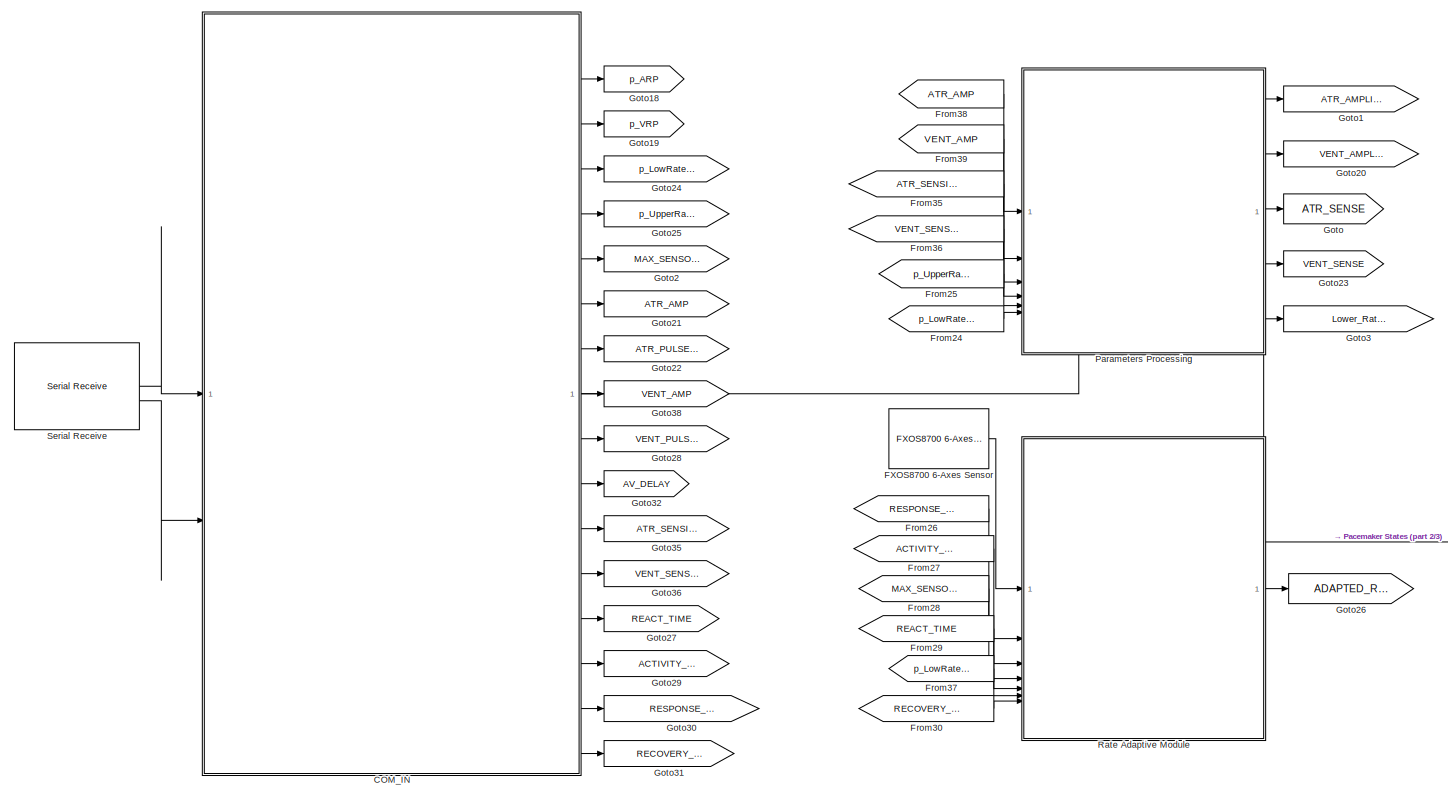
[diagram: root canvas - part 1/3, left side, full height]
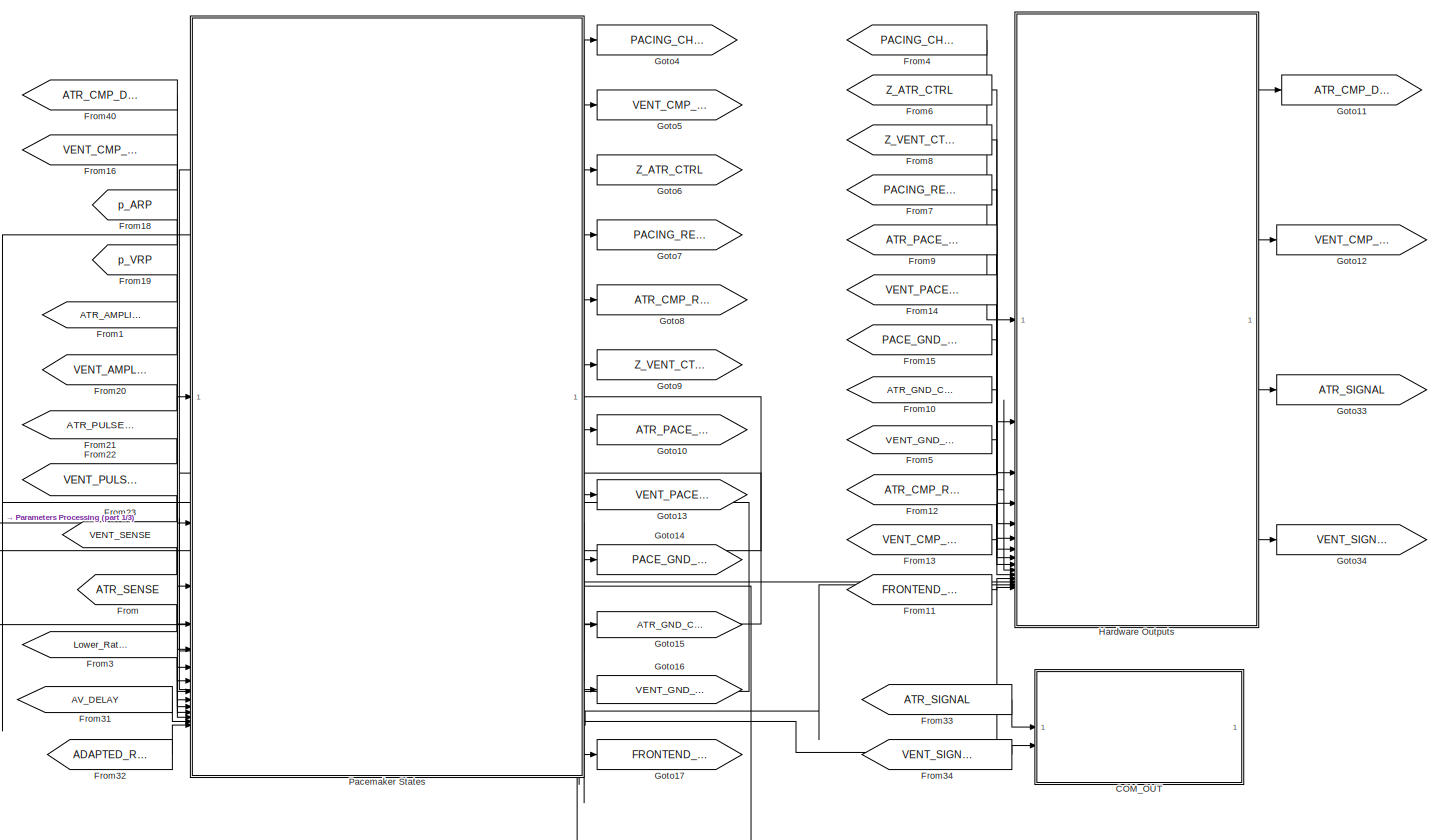
[diagram: root canvas - part 2/3, right side, full height]
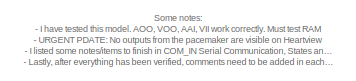
[diagram: root canvas - part 3/3, bottom center region]
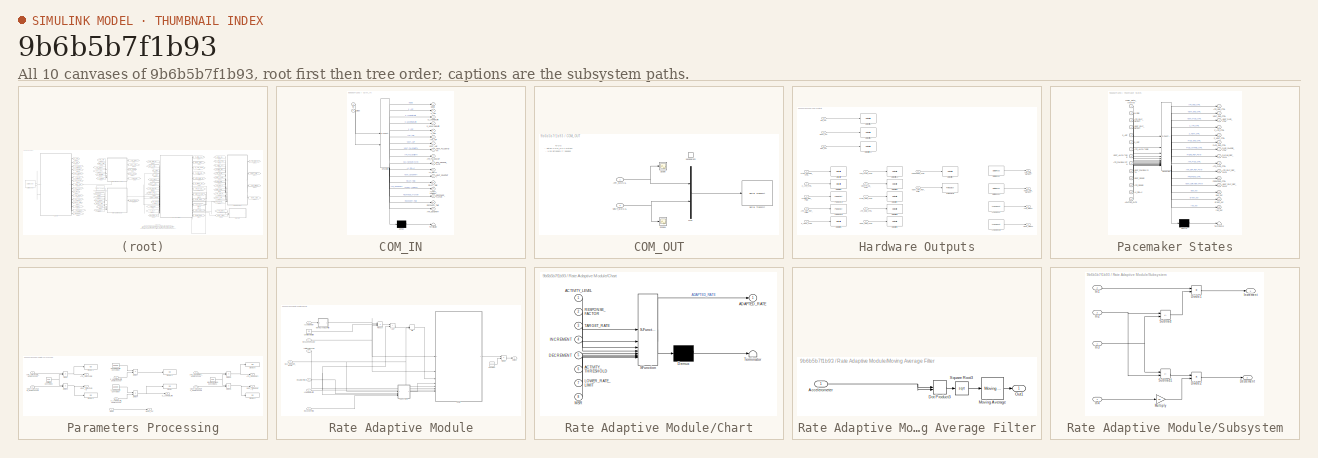
[diagram: thumbnail index - all 10 canvases of the model, root first then tree order]
MODEL slx_9b6b5b7f1b93
KIND model
CONFIG AbsTol = auto
CONFIG EnableMultiTasking = on
CONFIG FixedStep = 1e-3
CONFIG MaxStep = auto
CONFIG MinStep = auto
CONFIG RelTol = 1e-3
CONFIG SampleTimeConstraint = Unconstrained
CONFIG SolverName = FixedStepAuto
CONFIG StartTime = 0.0
CONFIG StopTime = 1
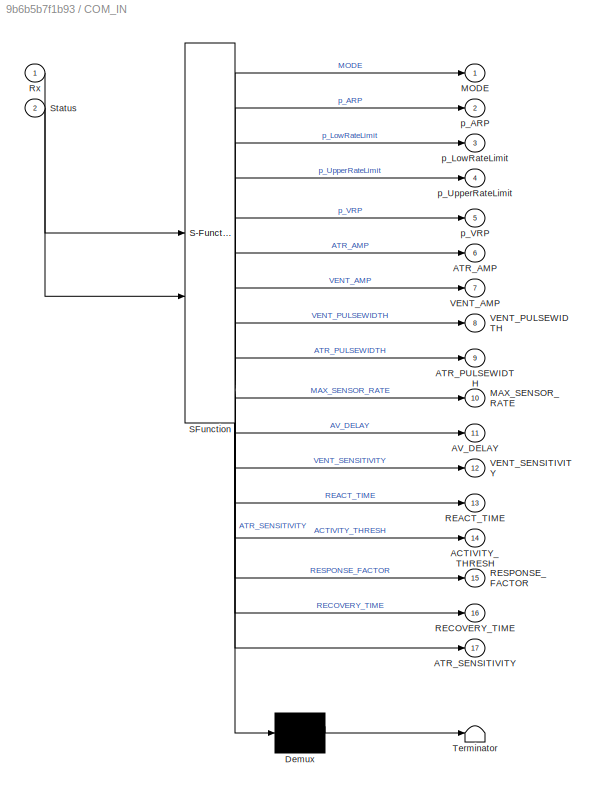
BLOCK [SubSystem] COM_IN
  ErrorFcn = Stateflow.Translate.translate
  PermitHierarchicalResolution = ExplicitOnly
  PortSchema = {"entries":[{"content":{"sides":[{"content":{"connectorIds":["In1","In2"]},"type":"ConnectorPlacement.EquallySpacedRectSide","uuid":"1aa50ecf-3a03-4bd0-8c8d-e8c42c1df160"},{"content":{"connectorIds":["Out1","Out2","Out5","Out3","Out4","Out10","Out6","Out9","Out7","Out8","Out11","Out17","Out12","Out13","Out14","Out15","Out16"],"side":"RIGHT"},"type":"ConnectorPlacement.EquallySpacedRectSide","uuid"...<+366ch>
  SFBlockType = Chart
  TreatAsAtomicUnit = on
BLOCK [Demux] COM_IN/ Demux 
  Outputs = 1
BLOCK [S-Function] COM_IN/ SFunction 
  EnableBusSupport = on
  FunctionName = sf_sfun
  PortCounts = [2 18]
  SFcnIsStateOwnerBlock = off
  SFunctionDeploymentMode = off
  Tag = Stateflow S-Function 1
BLOCK [Terminator] COM_IN/ Terminator 
BLOCK [Outport] COM_IN/ACTIVITY_THRESH
  Port = 14
BLOCK [Outport] COM_IN/ATR_AMP
  Port = 6
BLOCK [Outport] COM_IN/ATR_PULSEWIDTH
  Port = 9
BLOCK [Outport] COM_IN/ATR_SENSITIVITY
  Port = 17
BLOCK [Outport] COM_IN/AV_DELAY
  Port = 11
BLOCK [Outport] COM_IN/MAX_SENSOR_RATE
  Port = 10
BLOCK [Outport] COM_IN/MODE
BLOCK [Outport] COM_IN/REACT_TIME
  Port = 13
BLOCK [Outport] COM_IN/RECOVERY_TIME
  Port = 16
BLOCK [Outport] COM_IN/RESPONSE_FACTOR
  Port = 15
BLOCK [Inport] COM_IN/Rx
BLOCK [Inport] COM_IN/Status
  Port = 2
BLOCK [Outport] COM_IN/VENT_AMP
  Port = 7
BLOCK [Outport] COM_IN/VENT_PULSEWIDTH
  Port = 8
BLOCK [Outport] COM_IN/VENT_SENSITIVITY
  Port = 12
BLOCK [Outport] COM_IN/p_ARP
  Port = 2
BLOCK [Outport] COM_IN/p_LowRateLimit
  Port = 3
BLOCK [Outport] COM_IN/p_UpperRateLimit
  Port = 4
BLOCK [Outport] COM_IN/p_VRP
  Port = 5
BLOCK [SubSystem] COM_OUT
  TreatAsAtomicUnit = on
BLOCK [Inport] COM_OUT/ATR_SIGNAL
  OutDataTypeStr = double
BLOCK [Mux] COM_OUT/Mux
  DisplayOption = bar
  Inputs = 2
BLOCK [Scope] COM_OUT/Scope
  Floating = off
  NumInputPorts = 1
  ScopeSpecificationString = Simulink.scopes.TimeScopeBlockCfg('CurrentConfiguration', extmgr.ConfigurationSet(extmgr.Configuration('Core','General UI',true),extmgr.Configuration('Core','Source UI',true),extmgr.Configuration('Sources','WiredSimulink',true,'DataLoggingVariableName','ScopeData1'),extmgr.Configuration('Visuals','Time Domain',true),extmgr.Configuration('Tools','Plot Navigation',true),extmgr.Configuration('Tools',...<+40ch>
BLOCK [Scope] COM_OUT/Scope1
  Floating = off
  NumInputPorts = 1
  ScopeSpecificationString = Simulink.scopes.TimeScopeBlockCfg('CurrentConfiguration', extmgr.ConfigurationSet(extmgr.Configuration('Core','General UI',true),extmgr.Configuration('Core','Source UI',true),extmgr.Configuration('Sources','WiredSimulink',true),extmgr.Configuration('Visuals','Time Domain',true),extmgr.Configuration('Tools','Plot Navigation',true),extmgr.Configuration('Tools','Measurements',true)),'Version','2022b'...<+1ch>
BLOCK [Reference] COM_OUT/Serial Transmit  REF=frdmk64flib/Serial Transmit
  SourceBlock = frdmk64flib/Serial Transmit
  SourceType = freedomk64f.SCIWrite
BLOCK [Inport] COM_OUT/VENT_SIGNAL
  OutDataTypeStr = double
  Port = 2
BLOCK [TriggerPort] COM_OUT/sendparam
  FunctionName = sendparam
  IsSimulinkFunction = on
  PortDimensions = 1
  StatesWhenEnabling = held
  TriggerType = function-call
  VariantControl = (inherit)
BLOCK [Reference] FXOS8700 6-Axes Sensor  REF=frdmk64flib/FXOS8700 6-Axes Sensor
  SourceBlock = frdmk64flib/FXOS8700 6-Axes Sensor
  SourceType = freedomk64f.fxos8700
BLOCK [From] From
  GotoTag = ATR_SENSE
BLOCK [From] From1
  GotoTag = ATR_AMPLITUDE
BLOCK [From] From10
  GotoTag = ATR_GND_CTRL
BLOCK [From] From11
  GotoTag = FRONTEND_CTRL
BLOCK [From] From12
  GotoTag = ATR_CMP_REF_PWM
BLOCK [From] From13
  GotoTag = VENT_CMP_REF_PWM
BLOCK [From] From14
  GotoTag = VENT_PACE_CTRL
BLOCK [From] From15
  GotoTag = PACE_GND_CTRL
BLOCK [From] From16
  GotoTag = VENT_CMP_DETECT
BLOCK [From] From18
  GotoTag = p_ARP
BLOCK [From] From19
  GotoTag = p_VRP
BLOCK [From] From20
  GotoTag = VENT_AMPLITUDE
BLOCK [From] From21
  GotoTag = ATR_PULSEWIDTH
BLOCK [From] From22
  GotoTag = VENT_PULSEWIDTH
BLOCK [From] From23
  GotoTag = VENT_SENSE
BLOCK [From] From24
  GotoTag = p_LowRateLimit
BLOCK [From] From25
  GotoTag = p_UpperRateLimit
BLOCK [From] From26
  GotoTag = RESPONSE_FACTOR
BLOCK [From] From27
  GotoTag = ACTIVITY_THRESH
BLOCK [From] From28
  GotoTag = MAX_SENSOR_RATE
BLOCK [From] From29
  GotoTag = REACT_TIME
BLOCK [From] From3
  GotoTag = Lower_Rate_Interval
BLOCK [From] From30
  GotoTag = RECOVERY_TIME
BLOCK [From] From31
  GotoTag = AV_DELAY
BLOCK [From] From32
  GotoTag = ADAPTED_RATE
BLOCK [From] From33
  GotoTag = ATR_SIGNAL
BLOCK [From] From34
  GotoTag = VENT_SIGNAL
BLOCK [From] From35
  GotoTag = ATR_SENSITIVITY
BLOCK [From] From36
  GotoTag = VENT_SENSITIVITY
BLOCK [From] From37
  GotoTag = p_LowRateLimit
BLOCK [From] From38
  GotoTag = ATR_AMP
BLOCK [From] From39
  GotoTag = VENT_AMP
BLOCK [From] From4
  GotoTag = PACING_CHARGE_CTRL
BLOCK [From] From40
  GotoTag = ATR_CMP_DETECT
BLOCK [From] From5
  GotoTag = VENT_GND_CTRL
BLOCK [From] From6
  GotoTag = Z_ATR_CTRL
BLOCK [From] From7
  GotoTag = PACING_REF_PWM
BLOCK [From] From8
  GotoTag = Z_VENT_CTRL
BLOCK [From] From9
  GotoTag = ATR_PACE_CTRL
BLOCK [Goto] Goto
  GotoTag = ATR_SENSE
BLOCK [Goto] Goto1
  GotoTag = ATR_AMPLITUDE
BLOCK [Goto] Goto10
  GotoTag = ATR_PACE_CTRL
BLOCK [Goto] Goto11
  GotoTag = ATR_CMP_DETECT
BLOCK [Goto] Goto12
  GotoTag = VENT_CMP_DETECT
BLOCK [Goto] Goto13
  GotoTag = VENT_PACE_CTRL
BLOCK [Goto] Goto14
  GotoTag = PACE_GND_CTRL
BLOCK [Goto] Goto15
  GotoTag = ATR_GND_CTRL
BLOCK [Goto] Goto16
  GotoTag = VENT_GND_CTRL
BLOCK [Goto] Goto17
  GotoTag = FRONTEND_CTRL
BLOCK [Goto] Goto18
  GotoTag = p_ARP
BLOCK [Goto] Goto19
  GotoTag = p_VRP
BLOCK [Goto] Goto2
  GotoTag = MAX_SENSOR_RATE
BLOCK [Goto] Goto20
  GotoTag = VENT_AMPLITUDE
BLOCK [Goto] Goto21
  GotoTag = ATR_AMP
BLOCK [Goto] Goto22
  GotoTag = ATR_PULSEWIDTH
BLOCK [Goto] Goto23
  GotoTag = VENT_SENSE
BLOCK [Goto] Goto24
  GotoTag = p_LowRateLimit
BLOCK [Goto] Goto25
  GotoTag = p_UpperRateLimit
BLOCK [Goto] Goto26
  GotoTag = ADAPTED_RATE
BLOCK [Goto] Goto27
  GotoTag = REACT_TIME
BLOCK [Goto] Goto28
  GotoTag = VENT_PULSEWIDTH
BLOCK [Goto] Goto29
  GotoTag = ACTIVITY_THRESH
BLOCK [Goto] Goto3
  GotoTag = Lower_Rate_Interval
BLOCK [Goto] Goto30
  GotoTag = RESPONSE_FACTOR
BLOCK [Goto] Goto31
  GotoTag = RECOVERY_TIME
BLOCK [Goto] Goto32
  GotoTag = AV_DELAY
BLOCK [Goto] Goto33
  GotoTag = ATR_SIGNAL
BLOCK [Goto] Goto34
  GotoTag = VENT_SIGNAL
BLOCK [Goto] Goto35
  GotoTag = ATR_SENSITIVITY
BLOCK [Goto] Goto36
  GotoTag = VENT_SENSITIVITY
BLOCK [Goto] Goto38
  GotoTag = VENT_AMP
BLOCK [Goto] Goto4
  GotoTag = PACING_CHARGE_CTRL
BLOCK [Goto] Goto5
  GotoTag = VENT_CMP_REF_PWM
BLOCK [Goto] Goto6
  GotoTag = Z_ATR_CTRL
BLOCK [Goto] Goto7
  GotoTag = PACING_REF_PWM
BLOCK [Goto] Goto8
  GotoTag = ATR_CMP_REF_PWM
BLOCK [Goto] Goto9
  GotoTag = Z_VENT_CTRL
BLOCK [SubSystem] Hardware Outputs
BLOCK [Outport] Hardware Outputs/ATR_CMP_DETECT
BLOCK [Inport] Hardware Outputs/ATR_CMP_REF_PWM
  Port = 10
BLOCK [Inport] Hardware Outputs/ATR_GND_CTRL
  Port = 8
BLOCK [Inport] Hardware Outputs/ATR_PACE_CTRL
  Port = 5
BLOCK [Outport] Hardware Outputs/ATR_SIGNAL
  OutDataTypeStr = double
  Port = 3
BLOCK [Reference] Hardware Outputs/Analog Input  REF=frdmk64flib/Analog Input
  SourceBlock = frdmk64flib/Analog Input
  SourceType = freedomk64f.AnalogInput
BLOCK [Reference] Hardware Outputs/Analog Input1  REF=frdmk64flib/Analog Input
  SourceBlock = frdmk64flib/Analog Input
  SourceType = freedomk64f.AnalogInput
BLOCK [Reference] Hardware Outputs/Digital Read  REF=frdmk64flib/Digital Read
  SourceBlock = frdmk64flib/Digital Read
  SourceType = freedomk64f.DigitalRead
BLOCK [Reference] Hardware Outputs/Digital Read1  REF=frdmk64flib/Digital Read
  SourceBlock = frdmk64flib/Digital Read
  SourceType = freedomk64f.DigitalRead
BLOCK [Reference] Hardware Outputs/Digital Write  REF=frdmk64flib/Digital Write
  SourceBlock = frdmk64flib/Digital Write
  SourceType = freedomk64f.DigitalWrite
BLOCK [Reference] Hardware Outputs/Digital Write1  REF=frdmk64flib/Digital Write
  SourceBlock = frdmk64flib/Digital Write
  SourceType = freedomk64f.DigitalWrite
BLOCK [Reference] Hardware Outputs/Digital Write10  REF=frdmk64flib/Digital Write
  SourceBlock = frdmk64flib/Digital Write
  SourceType = freedomk64f.DigitalWrite
BLOCK [Reference] Hardware Outputs/Digital Write11  REF=frdmk64flib/Digital Write
  SourceBlock = frdmk64flib/Digital Write
  SourceType = freedomk64f.DigitalWrite
BLOCK [Reference] Hardware Outputs/Digital Write2  REF=frdmk64flib/Digital Write
  SourceBlock = frdmk64flib/Digital Write
  SourceType = freedomk64f.DigitalWrite
BLOCK [Reference] Hardware Outputs/Digital Write3  REF=frdmk64flib/Digital Write
  SourceBlock = frdmk64flib/Digital Write
  SourceType = freedomk64f.DigitalWrite
BLOCK [Reference] Hardware Outputs/Digital Write4  REF=frdmk64flib/Digital Write
  SourceBlock = frdmk64flib/Digital Write
  SourceType = freedomk64f.DigitalWrite
BLOCK [Reference] Hardware Outputs/Digital Write5  REF=frdmk64flib/Digital Write
  SourceBlock = frdmk64flib/Digital Write
  SourceType = freedomk64f.DigitalWrite
BLOCK [Reference] Hardware Outputs/Digital Write6  REF=frdmk64flib/Digital Write
  SourceBlock = frdmk64flib/Digital Write
  SourceType = freedomk64f.DigitalWrite
BLOCK [Reference] Hardware Outputs/Digital Write7  REF=frdmk64flib/Digital Write
  SourceBlock = frdmk64flib/Digital Write
  SourceType = freedomk64f.DigitalWrite
BLOCK [Reference] Hardware Outputs/Digital Write8  REF=frdmk64flib/Digital Write
  SourceBlock = frdmk64flib/Digital Write
  SourceType = freedomk64f.DigitalWrite
BLOCK [Reference] Hardware Outputs/Digital Write9  REF=frdmk64flib/Digital Write
  SourceBlock = frdmk64flib/Digital Write
  SourceType = freedomk64f.DigitalWrite
BLOCK [Inport] Hardware Outputs/FRONTEND_CTRL
  Port = 12
BLOCK [Inport] Hardware Outputs/PACE_CHARGE_CTRL
BLOCK [Inport] Hardware Outputs/PACE_GND_CTRL
  Port = 7
BLOCK [Inport] Hardware Outputs/PACING_REF_PWM
  Port = 4
BLOCK [Reference] Hardware Outputs/PWM Output1  REF=frdmk64flib/PWM Output
  SourceBlock = frdmk64flib/PWM Output
  SourceType = freedomk64f.PWMOutput
BLOCK [Reference] Hardware Outputs/PWM Output2  REF=frdmk64flib/PWM Output
  SourceBlock = frdmk64flib/PWM Output
  SourceType = freedomk64f.PWMOutput
BLOCK [Reference] Hardware Outputs/PWM Output3  REF=frdmk64flib/PWM Output
  SourceBlock = frdmk64flib/PWM Output
  SourceType = freedomk64f.PWMOutput
BLOCK [Outport] Hardware Outputs/VENT_CMP_DETECT
  Port = 2
BLOCK [Inport] Hardware Outputs/VENT_CMP_REF_PWM
  Port = 11
BLOCK [Inport] Hardware Outputs/VENT_GND_CTRL
  Port = 9
BLOCK [Inport] Hardware Outputs/VENT_PACE_CTRL
  Port = 6
BLOCK [Outport] Hardware Outputs/VENT_SIGNAL
  OutDataTypeStr = double
  Port = 4
BLOCK [Inport] Hardware Outputs/Z_ATR_CTRL
  Port = 2
BLOCK [Inport] Hardware Outputs/Z_VENT_CTRL
  Port = 3
BLOCK [Inport] Hardware Outputs/blue_out
  Port = 15
BLOCK [Inport] Hardware Outputs/green_out
  Port = 14
BLOCK [Inport] Hardware Outputs/red_out
  Port = 13
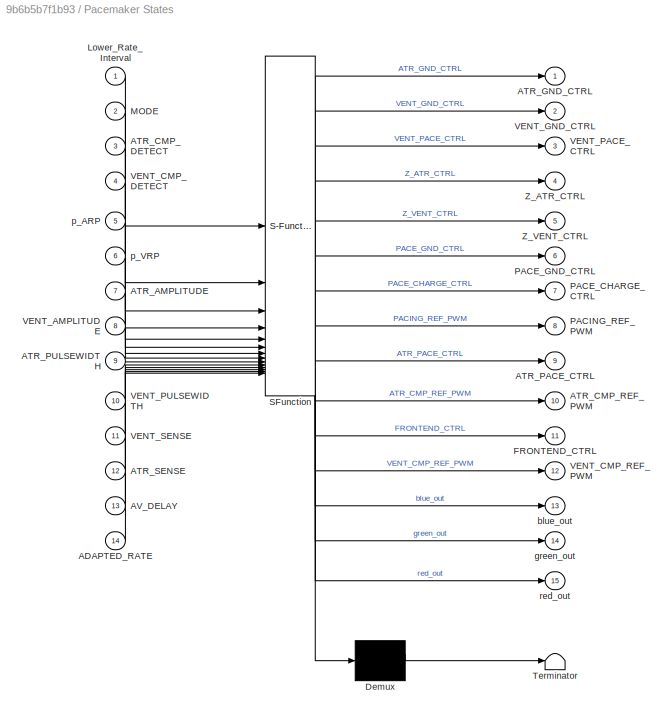
BLOCK [SubSystem] Pacemaker States
  ErrorFcn = Stateflow.Translate.translate
  PermitHierarchicalResolution = ExplicitOnly
  PortSchema = {"entries":[{"content":{"sides":[{"content":{"connectorIds":["In2","In3","In4","In5","In6","In7","In8","In9","In10","In11","In12","In1","In13","In14"]},"type":"ConnectorPlacement.EquallySpacedRectSide","uuid":"15e03f69-5c25-4f3e-b3fb-d71978e552f4"},{"content":{"connectorIds":["Out7","Out12","Out4","Out8","Out10","Out5","Out9","Out3","Out15","Out6","Out14","Out13","Out1","Out2","Out11"],"side":"RIG...<+427ch>
  SFBlockType = Chart
  TreatAsAtomicUnit = on
BLOCK [Demux] Pacemaker States/ Demux 
  Outputs = 1
BLOCK [S-Function] Pacemaker States/ SFunction 
  EnableBusSupport = on
  FunctionName = sf_sfun
  PortCounts = [14 16]
  SFcnIsStateOwnerBlock = off
  SFunctionDeploymentMode = off
  Tag = Stateflow S-Function 3
BLOCK [Terminator] Pacemaker States/ Terminator 
BLOCK [Inport] Pacemaker States/ADAPTED_RATE
  Port = 14
BLOCK [Inport] Pacemaker States/ATR_AMPLITUDE
  Port = 7
BLOCK [Inport] Pacemaker States/ATR_CMP_DETECT
  Port = 3
BLOCK [Outport] Pacemaker States/ATR_CMP_REF_PWM
  Port = 10
BLOCK [Outport] Pacemaker States/ATR_GND_CTRL
BLOCK [Outport] Pacemaker States/ATR_PACE_CTRL
  Port = 9
BLOCK [Inport] Pacemaker States/ATR_PULSEWIDTH
  Port = 9
BLOCK [Inport] Pacemaker States/ATR_SENSE
  Port = 12
BLOCK [Inport] Pacemaker States/AV_DELAY
  Port = 13
BLOCK [Outport] Pacemaker States/FRONTEND_CTRL
  Port = 11
BLOCK [Inport] Pacemaker States/Lower_Rate_Interval
BLOCK [Inport] Pacemaker States/MODE
  Port = 2
BLOCK [Outport] Pacemaker States/PACE_CHARGE_CTRL
  Port = 7
BLOCK [Outport] Pacemaker States/PACE_GND_CTRL
  Port = 6
BLOCK [Outport] Pacemaker States/PACING_REF_PWM
  Port = 8
BLOCK [Inport] Pacemaker States/VENT_AMPLITUDE
  Port = 8
BLOCK [Inport] Pacemaker States/VENT_CMP_DETECT
  Port = 4
BLOCK [Outport] Pacemaker States/VENT_CMP_REF_PWM
  Port = 12
BLOCK [Outport] Pacemaker States/VENT_GND_CTRL
  Port = 2
BLOCK [Outport] Pacemaker States/VENT_PACE_CTRL
  Port = 3
BLOCK [Inport] Pacemaker States/VENT_PULSEWIDTH
  Port = 10
BLOCK [Inport] Pacemaker States/VENT_SENSE
  Port = 11
BLOCK [Outport] Pacemaker States/Z_ATR_CTRL
  Port = 4
BLOCK [Outport] Pacemaker States/Z_VENT_CTRL
  Port = 5
BLOCK [Outport] Pacemaker States/blue_out
  Port = 13
BLOCK [Outport] Pacemaker States/green_out
  Port = 14
BLOCK [Inport] Pacemaker States/p_ARP
  Port = 5
BLOCK [Inport] Pacemaker States/p_VRP
  Port = 6
BLOCK [Outport] Pacemaker States/red_out
  Port = 15
BLOCK [SubSystem] Parameters Processing
  PortSchema = {"entries":[{"content":{"sides":[{"content":{"connectorIds":["In1","In2","In3","In4","In5","In6"]},"type":"ConnectorPlacement.EquallySpacedRectSide","uuid":"651e63ca-28f2-42bd-8706-028901d11c05"},{"content":{"connectorIds":["Out1","Out2","Out3","Out4","Out5"],"side":"RIGHT"},"type":"ConnectorPlacement.EquallySpacedRectSide","uuid":"490f658c-59fe-438c-accc-92ccac1dea65"},{"content":{"connectorIds":...<+310ch>
BLOCK [Outport] Parameters Processing/ATR_AMPLITUDE
  OutDataTypeStr = single
BLOCK [Inport] Parameters Processing/ATR_AMPLITUDE_Unprocessed
  OutDataTypeStr = single
BLOCK [Outport] Parameters Processing/ATR_SENSITIVITY
  OutDataTypeStr = single
  Port = 3
BLOCK [Inport] Parameters Processing/ATR_SENSITIVITY_Unprocessed
  OutDataTypeStr = single
  Port = 3
BLOCK [Constant] Parameters Processing/Amplitude Conversion
  OutDataTypeStr = single
  Value = 0.05
BLOCK [Display] Parameters Processing/Display
  Decimation = 1
BLOCK [Display] Parameters Processing/Display1
  Decimation = 1
BLOCK [Display] Parameters Processing/Display2
  Decimation = 1
BLOCK [Display] Parameters Processing/Display3
  Decimation = 1
BLOCK [Display] Parameters Processing/Display4
  Decimation = 1
BLOCK [Display] Parameters Processing/Display5
  Decimation = 1
BLOCK [Product] Parameters Processing/Divide
  Inputs = */
  OutDataTypeStr = single
BLOCK [Product] Parameters Processing/Divide1
  Inputs = /*
  OutDataTypeStr = single
BLOCK [Product] Parameters Processing/Divide4
  Inputs = */
  OutDataTypeStr = single
  RndMeth = Nearest
BLOCK [Product] Parameters Processing/Divide5
  Inputs = */
  OutDataTypeStr = single
BLOCK [Product] Parameters Processing/Divide6
  Inputs = /*
  OutDataTypeStr = single
BLOCK [Product] Parameters Processing/Divide7
  Inputs = */
  OutDataTypeStr = single
  RndMeth = Nearest
BLOCK [Constant] Parameters Processing/Lower Rate Limit Conversion
  OutDataTypeStr = single
  Value = 60000
BLOCK [Inport] Parameters Processing/MODE
  Port = 7
BLOCK [Constant] Parameters Processing/Maximum Voltage Conversion1
  OutDataTypeStr = single
  Value = 0.05
BLOCK [Outport] Parameters Processing/Mode_out
  Port = 6
BLOCK [Constant] Parameters Processing/Upper Rate Limit Conversion
  OutDataTypeStr = single
  Value = 60000
BLOCK [Outport] Parameters Processing/VENT_AMPLITUDE
  OutDataTypeStr = single
  Port = 2
BLOCK [Inport] Parameters Processing/VENT_AMPLITUDE_Unprocessed
  OutDataTypeStr = single
  Port = 2
BLOCK [Outport] Parameters Processing/VENT_SENSITIVITY
  OutDataTypeStr = single
  Port = 4
BLOCK [Inport] Parameters Processing/VENT_SENSITIVITY_Unprocessed
  OutDataTypeStr = single
  Port = 4
BLOCK [Outport] Parameters Processing/p_LowRateLimit
  OutDataTypeStr = single
  Port = 5
BLOCK [Inport] Parameters Processing/p_LowRateLimit_Unprocessed
  OutDataTypeStr = single
  Port = 6
BLOCK [Inport] Parameters Processing/p_UpperRateLimit_Unprocessed
  OutDataTypeStr = single
  Port = 5
BLOCK [SubSystem] Rate Adaptive Module
BLOCK [Inport] Rate Adaptive Module/Accelerometer
BLOCK [Inport] Rate Adaptive Module/Activity Threshold
  Port = 3
BLOCK [Sum] Rate Adaptive Module/Add
  IconShape = rectangular
BLOCK [SubSystem] Rate Adaptive Module/Chart
  ErrorFcn = Stateflow.Translate.translate
  PermitHierarchicalResolution = ExplicitOnly
  PortSchema = {"entries":[{"content":{"sides":[{"content":{"connectorIds":["In1","In3","In2","In6","In8","In7","In4","In5"]},"type":"ConnectorPlacement.EquallySpacedRectSide","uuid":"efebee7e-2c09-4b25-ba04-904f72c011ed"},{"content":{"connectorIds":["Out1"],"side":"RIGHT"},"type":"ConnectorPlacement.EquallySpacedRectSide","uuid":"6322cc63-1b7a-423a-b49b-7b27e71e0c32"},{"content":{"connectorIds":[],"side":"TOP"}...<+284ch>
  SFBlockType = Chart
  TreatAsAtomicUnit = on
BLOCK [Demux] Rate Adaptive Module/Chart/ Demux 
  Outputs = 1
BLOCK [S-Function] Rate Adaptive Module/Chart/ SFunction 
  EnableBusSupport = on
  FunctionName = sf_sfun
  PortCounts = [8 2]
  SFcnIsStateOwnerBlock = off
  SFunctionDeploymentMode = off
  Tag = Stateflow S-Function 2
BLOCK [Terminator] Rate Adaptive Module/Chart/ Terminator 
BLOCK [Inport] Rate Adaptive Module/Chart/ACTIVITY_LEVEL
BLOCK [Inport] Rate Adaptive Module/Chart/ACTIVITY_THRESHOLD
  Port = 6
BLOCK [Outport] Rate Adaptive Module/Chart/ADAPTED_RATE
BLOCK [Inport] Rate Adaptive Module/Chart/DECREMENT
  Port = 5
BLOCK [Inport] Rate Adaptive Module/Chart/INCREMENT
  Port = 4
BLOCK [Inport] Rate Adaptive Module/Chart/LOWER_RATE_LIMIT
  Port = 7
BLOCK [Inport] Rate Adaptive Module/Chart/MSR
  Port = 8
BLOCK [Inport] Rate Adaptive Module/Chart/RESPONSE_FACTOR
  Port = 2
BLOCK [Inport] Rate Adaptive Module/Chart/TARGET_RATE
  Port = 3
BLOCK [Constant] Rate Adaptive Module/Coefficient Multiple
  Value = 3.5
BLOCK [Constant] Rate Adaptive Module/Constant
  Value = 30000
BLOCK [Product] Rate Adaptive Module/Divide
  Inputs = /*
BLOCK [Inport] Rate Adaptive Module/Lower Rate Limit
  Port = 6
BLOCK [Inport] Rate Adaptive Module/MAX_SENSOR_RATE
  Port = 4
BLOCK [MinMax] Rate Adaptive Module/Min
  Inputs = 2
BLOCK [SubSystem] Rate Adaptive Module/Moving Average Filter
BLOCK [Inport] Rate Adaptive Module/Moving Average Filter/Accelerometer
BLOCK [DotProduct] Rate Adaptive Module/Moving Average Filter/Dot Product3
  OutDataTypeStr = Inherit: Inherit via internal rule
BLOCK [Reference] Rate Adaptive Module/Moving Average Filter/Moving Average  REF=dspstat3/Moving
Average
  SourceBlock = dspstat3/Moving\nAverage
  SourceType = dsp.simulink.MovingAverage
BLOCK [Outport] Rate Adaptive Module/Moving Average Filter/Out1
BLOCK [Sqrt] Rate Adaptive Module/Moving Average Filter/Square Root3
BLOCK [Outport] Rate Adaptive Module/Output
BLOCK [Product] Rate Adaptive Module/Product
  Inputs = 3
BLOCK [Inport] Rate Adaptive Module/Reaction Time
  Port = 5
BLOCK [Inport] Rate Adaptive Module/Recovery Time
  Port = 7
BLOCK [Inport] Rate Adaptive Module/Response Factor
  Port = 2
BLOCK [SubSystem] Rate Adaptive Module/Subsystem
BLOCK [Outport] Rate Adaptive Module/Subsystem/Decrement
  OutDataTypeStr = single
  Port = 2
BLOCK [Product] Rate Adaptive Module/Subsystem/Divide1
  Inputs = /*
  RndMeth = Ceiling
BLOCK [Product] Rate Adaptive Module/Subsystem/Divide2
  Inputs = */
  RndMeth = Ceiling
  SaturateOnIntegerOverflow = on
BLOCK [Inport] Rate Adaptive Module/Subsystem/In1
  OutDataTypeStr = single
  Port = 2
BLOCK [Inport] Rate Adaptive Module/Subsystem/In2
  OutDataTypeStr = single
  Port = 3
BLOCK [Inport] Rate Adaptive Module/Subsystem/In3
  OutDataTypeStr = single
BLOCK [Inport] Rate Adaptive Module/Subsystem/In4
  OutDataTypeStr = single
  Port = 4
BLOCK [Outport] Rate Adaptive Module/Subsystem/Increment
  OutDataTypeStr = single
BLOCK [Gain] Rate Adaptive Module/Subsystem/Multiply
  Gain = 60
BLOCK [Sum] Rate Adaptive Module/Subsystem/Subtract
  IconShape = rectangular
  Inputs = -+
BLOCK [Sum] Rate Adaptive Module/Subsystem/Subtract1
  IconShape = rectangular
  Inputs = +-
BLOCK [Reference] Serial Receive  REF=frdmk64flib/Serial Receive
  SourceBlock = frdmk64flib/Serial Receive
  SourceType = freedomk64f.SCIRead
ANNOTATION (root): Some notes: - I have tested this model. AOO, VOO, AAI, VII work correctly. Must test RAM - URGENT PDATE: No outputs from the pacemaker are visible on Heartview - I listed some notes/items to finish in COM_IN Serial Communication, States and COM_OUT - Lastly, after everything has been verified, comments need to be added in each section and hardware hiding techniques need to be applied
ANNOTATION COM_OUT: To-Do: - Setup COM_OUT system - Use Bytepack if needed
LINE COM_IN:1 -> Parameters Processing:7
LINE COM_IN:10 -> Goto2:1
LINE COM_IN:11 -> Goto32:1
LINE COM_IN:12 -> Goto36:1
LINE COM_IN:13 -> Goto27:1
LINE COM_IN:14 -> Goto29:1
LINE COM_IN:15 -> Goto30:1
LINE COM_IN:16 -> Goto31:1
LINE COM_IN:17 -> Goto35:1
LINE COM_IN:2 -> Goto18:1
LINE COM_IN:3 -> Goto24:1
LINE COM_IN:4 -> Goto25:1
LINE COM_IN:5 -> Goto19:1
LINE COM_IN:6 -> Goto21:1
LINE COM_IN:7 -> Goto38:1
LINE COM_IN:8 -> Goto28:1
LINE COM_IN:9 -> Goto22:1
NET COM_OUT/ATR_SIGNAL:1 -> COM_OUT/Mux:1, COM_OUT/Scope:1
LINE COM_OUT/Mux:1 -> COM_OUT/Serial Transmit:1
NET COM_OUT/VENT_SIGNAL:1 -> COM_OUT/Mux:2, COM_OUT/Scope1:1
LINE FXOS8700 6-Axes Sensor:1 -> Rate Adaptive Module:1
LINE From10:1 -> Hardware Outputs:8
LINE From11:1 -> Hardware Outputs:12
LINE From12:1 -> Hardware Outputs:10
LINE From13:1 -> Hardware Outputs:11
LINE From14:1 -> Hardware Outputs:6
LINE From15:1 -> Hardware Outputs:7
LINE From16:1 -> Pacemaker States:4
LINE From18:1 -> Pacemaker States:5
LINE From19:1 -> Pacemaker States:6
LINE From1:1 -> Pacemaker States:7
LINE From20:1 -> Pacemaker States:8
LINE From21:1 -> Pacemaker States:9
LINE From22:1 -> Pacemaker States:10
LINE From23:1 -> Pacemaker States:11
LINE From24:1 -> Parameters Processing:6
LINE From25:1 -> Parameters Processing:5
LINE From26:1 -> Rate Adaptive Module:2
LINE From27:1 -> Rate Adaptive Module:3
LINE From28:1 -> Rate Adaptive Module:4
LINE From29:1 -> Rate Adaptive Module:5
LINE From30:1 -> Rate Adaptive Module:7
LINE From31:1 -> Pacemaker States:13
LINE From32:1 -> Pacemaker States:14
LINE From33:1 -> COM_OUT:1
LINE From34:1 -> COM_OUT:2
LINE From35:1 -> Parameters Processing:3
LINE From36:1 -> Parameters Processing:4
LINE From37:1 -> Rate Adaptive Module:6
LINE From38:1 -> Parameters Processing:1
LINE From39:1 -> Parameters Processing:2
LINE From3:1 -> Pacemaker States:1
LINE From40:1 -> Pacemaker States:3
LINE From4:1 -> Hardware Outputs:1
LINE From5:1 -> Hardware Outputs:9
LINE From6:1 -> Hardware Outputs:2
LINE From7:1 -> Hardware Outputs:4
LINE From8:1 -> Hardware Outputs:3
LINE From9:1 -> Hardware Outputs:5
LINE From:1 -> Pacemaker States:12
LINE Hardware Outputs/ATR_CMP_REF_PWM:1 -> Hardware Outputs/PWM Output2:1
LINE Hardware Outputs/ATR_GND_CTRL:1 -> Hardware Outputs/Digital Write8:1
LINE Hardware Outputs/ATR_PACE_CTRL:1 -> Hardware Outputs/Digital Write10:1
LINE Hardware Outputs/Analog Input1:1 -> Hardware Outputs/VENT_SIGNAL:1
LINE Hardware Outputs/Analog Input:1 -> Hardware Outputs/ATR_SIGNAL:1
LINE Hardware Outputs/Digital Read1:1 -> Hardware Outputs/VENT_CMP_DETECT:1
LINE Hardware Outputs/Digital Read:1 -> Hardware Outputs/ATR_CMP_DETECT:1
LINE Hardware Outputs/FRONTEND_CTRL:1 -> Hardware Outputs/Digital Write4:1
LINE Hardware Outputs/PACE_CHARGE_CTRL:1 -> Hardware Outputs/Digital Write:1
LINE Hardware Outputs/PACE_GND_CTRL:1 -> Hardware Outputs/Digital Write7:1
LINE Hardware Outputs/PACING_REF_PWM:1 -> Hardware Outputs/PWM Output1:1
LINE Hardware Outputs/VENT_CMP_REF_PWM:1 -> Hardware Outputs/PWM Output3:1
LINE Hardware Outputs/VENT_GND_CTRL:1 -> Hardware Outputs/Digital Write9:1
LINE Hardware Outputs/VENT_PACE_CTRL:1 -> Hardware Outputs/Digital Write6:1
LINE Hardware Outputs/Z_ATR_CTRL:1 -> Hardware Outputs/Digital Write2:1
LINE Hardware Outputs/Z_VENT_CTRL:1 -> Hardware Outputs/Digital Write5:1
LINE Hardware Outputs/blue_out:1 -> Hardware Outputs/Digital Write11:1
LINE Hardware Outputs/green_out:1 -> Hardware Outputs/Digital Write3:1
LINE Hardware Outputs/red_out:1 -> Hardware Outputs/Digital Write1:1
LINE Hardware Outputs:1 -> Goto11:1
LINE Hardware Outputs:2 -> Goto12:1
LINE Hardware Outputs:3 -> Goto33:1
LINE Hardware Outputs:4 -> Goto34:1
LINE Pacemaker States:1 -> Goto15:1
LINE Pacemaker States:10 -> Goto8:1
LINE Pacemaker States:11 -> Goto17:1
LINE Pacemaker States:12 -> Goto5:1
LINE Pacemaker States:13 -> Hardware Outputs:15
LINE Pacemaker States:14 -> Hardware Outputs:14
LINE Pacemaker States:15 -> Hardware Outputs:13
LINE Pacemaker States:2 -> Goto16:1
LINE Pacemaker States:3 -> Goto13:1
LINE Pacemaker States:4 -> Goto6:1
LINE Pacemaker States:5 -> Goto9:1
LINE Pacemaker States:6 -> Goto14:1
LINE Pacemaker States:7 -> Goto4:1
LINE Pacemaker States:8 -> Goto7:1
LINE Pacemaker States:9 -> Goto10:1
LINE Parameters Processing/ATR_AMPLITUDE_Unprocessed:1 -> Parameters Processing/Divide:1
LINE Parameters Processing/ATR_SENSITIVITY_Unprocessed:1 -> Parameters Processing/Divide5:1
NET Parameters Processing/Amplitude Conversion:1 -> Parameters Processing/Divide1:1, Parameters Processing/Divide:2
NET Parameters Processing/Divide1:1 -> Parameters Processing/Display3:1, Parameters Processing/VENT_AMPLITUDE:1
NET Parameters Processing/Divide4:1 -> Parameters Processing/Display:1, Parameters Processing/p_LowRateLimit:1
NET Parameters Processing/Divide5:1 -> Parameters Processing/ATR_SENSITIVITY:1, Parameters Processing/Display5:1
NET Parameters Processing/Divide6:1 -> Parameters Processing/Display4:1, Parameters Processing/VENT_SENSITIVITY:1
LINE Parameters Processing/Divide7:1 -> Parameters Processing/Display2:1
NET Parameters Processing/Divide:1 -> Parameters Processing/ATR_AMPLITUDE:1, Parameters Processing/Display1:1
LINE Parameters Processing/Lower Rate Limit Conversion:1 -> Parameters Processing/Divide4:1
LINE Parameters Processing/MODE:1 -> Parameters Processing/Mode_out:1
NET Parameters Processing/Maximum Voltage Conversion1:1 -> Parameters Processing/Divide5:2, Parameters Processing/Divide6:1
LINE Parameters Processing/Upper Rate Limit Conversion:1 -> Parameters Processing/Divide7:1
LINE Parameters Processing/VENT_AMPLITUDE_Unprocessed:1 -> Parameters Processing/Divide1:2
LINE Parameters Processing/VENT_SENSITIVITY_Unprocessed:1 -> Parameters Processing/Divide6:2
LINE Parameters Processing/p_LowRateLimit_Unprocessed:1 -> Parameters Processing/Divide4:2
LINE Parameters Processing/p_UpperRateLimit_Unprocessed:1 -> Parameters Processing/Divide7:2
LINE Parameters Processing:1 -> Goto1:1
LINE Parameters Processing:2 -> Goto20:1
LINE Parameters Processing:3 -> Goto:1
LINE Parameters Processing:4 -> Goto23:1
LINE Parameters Processing:5 -> Goto3:1
LINE Parameters Processing:6 -> Pacemaker States:2
LINE Rate Adaptive Module/Accelerometer:1 -> Rate Adaptive Module/Moving Average Filter:1
LINE Rate Adaptive Module/Activity Threshold:1 -> Rate Adaptive Module/Chart:6
LINE Rate Adaptive Module/Add:1 -> Rate Adaptive Module/Min:1
LINE Rate Adaptive Module/Chart:1 -> Rate Adaptive Module/Divide:1
LINE Rate Adaptive Module/Coefficient Multiple:1 -> Rate Adaptive Module/Product:2
LINE Rate Adaptive Module/Constant:1 -> Rate Adaptive Module/Divide:2
LINE Rate Adaptive Module/Divide:1 -> Rate Adaptive Module/Output:1
NET Rate Adaptive Module/Lower Rate Limit:1 -> Rate Adaptive Module/Add:2, Rate Adaptive Module/Chart:7, Rate Adaptive Module/Subsystem:3
NET Rate Adaptive Module/MAX_SENSOR_RATE:1 -> Rate Adaptive Module/Chart:8, Rate Adaptive Module/Min:2, Rate Adaptive Module/Subsystem:1
LINE Rate Adaptive Module/Min:1 -> Rate Adaptive Module/Chart:3
NET Rate Adaptive Module/Moving Average Filter/Accelerometer:1 -> Rate Adaptive Module/Moving Average Filter/Dot Product3:1, Rate Adaptive Module/Moving Average Filter/Dot Product3:2
LINE Rate Adaptive Module/Moving Average Filter/Dot Product3:1 -> Rate Adaptive Module/Moving Average Filter/Square Root3:1
LINE Rate Adaptive Module/Moving Average Filter/Moving Average:1 -> Rate Adaptive Module/Moving Average Filter/Out1:1
LINE Rate Adaptive Module/Moving Average Filter/Square Root3:1 -> Rate Adaptive Module/Moving Average Filter/Moving Average:1
NET Rate Adaptive Module/Moving Average Filter:1 -> Rate Adaptive Module/Chart:1, Rate Adaptive Module/Product:1
LINE Rate Adaptive Module/Product:1 -> Rate Adaptive Module/Add:1
LINE Rate Adaptive Module/Reaction Time:1 -> Rate Adaptive Module/Subsystem:2
LINE Rate Adaptive Module/Recovery Time:1 -> Rate Adaptive Module/Subsystem:4
NET Rate Adaptive Module/Response Factor:1 -> Rate Adaptive Module/Chart:2, Rate Adaptive Module/Product:3
LINE Rate Adaptive Module/Subsystem/Divide1:1 -> Rate Adaptive Module/Subsystem/Increment:1
LINE Rate Adaptive Module/Subsystem/Divide2:1 -> Rate Adaptive Module/Subsystem/Decrement:1
LINE Rate Adaptive Module/Subsystem/In1:1 -> Rate Adaptive Module/Subsystem/Divide1:1
NET Rate Adaptive Module/Subsystem/In2:1 -> Rate Adaptive Module/Subsystem/Subtract1:2, Rate Adaptive Module/Subsystem/Subtract:1
NET Rate Adaptive Module/Subsystem/In3:1 -> Rate Adaptive Module/Subsystem/Subtract1:1, Rate Adaptive Module/Subsystem/Subtract:2
LINE Rate Adaptive Module/Subsystem/In4:1 -> Rate Adaptive Module/Subsystem/Multiply:1
LINE Rate Adaptive Module/Subsystem/Multiply:1 -> Rate Adaptive Module/Subsystem/Divide2:2
LINE Rate Adaptive Module/Subsystem/Subtract1:1 -> Rate Adaptive Module/Subsystem/Divide2:1
LINE Rate Adaptive Module/Subsystem/Subtract:1 -> Rate Adaptive Module/Subsystem/Divide1:2
LINE Rate Adaptive Module/Subsystem:1 -> Rate Adaptive Module/Chart:4
LINE Rate Adaptive Module/Subsystem:2 -> Rate Adaptive Module/Chart:5
LINE Rate Adaptive Module:1 -> Goto26:1
LINE Serial Receive:1 -> COM_IN:1
LINE Serial Receive:2 -> COM_IN:2
note: NET lines group one-source signal fan-out (src -> all destinations, sorted); 1:1 wires keep LINE
CHART COM_IN states=5 transitions=9
  STATE_LABEL 'SET_PARAM\n% Uses serial input to assign values to the parameters\nentry:\nMODE = Rx(1);\np_ARP = typecast(Rx(2:5), "single");\np_VRP = typecast(Rx(6:9), "single");\np_LowRateLimit = typecast(Rx(10:13), "single");\np_UpperRateLimit = typecast(Rx(14:17), "single");\nMAX_SENSOR_RATE = typecast(Rx(18:21), "single");\nATR_AMP = typecast(Rx(22:25), "single");\nATR_PULSEWIDTH = typecast(Rx(26:29), "single");\nVENT...<+416ch>'
  STATE_LABEL '<!DOCTYPE HTML PUBLIC "-//W3C//DTD HTML 4.0//EN" "http://www.w3.org/TR/REC-html40/strict.dtd">\n<html><head><meta name="qrichtext" content="1" /><style type="text/css">\np, li { white-space: pre-wrap; }\n</style></head><body align="left" style=" font-family:\'Helvetica\'; font-size:12px; font-weight:400; font-style:normal;">\n<p align="left" style=" margin-top:0px; margin-bottom:0px; margin-left:0px; ma...<+720ch>'
  STATE_LABEL 'INITIAL\n% Set the initial values of parameters\nentry:\nMODE = 5;\np_ARP = 250;\np_VRP = 320;\np_LowRateLimit = 60;\np_UpperRateLimit = 120;\nMAX_SENSOR_RATE = 120;\nATR_AMP = 3.5;\nATR_PULSEWIDTH = 1;\nVENT_AMP = 3.5;\nVENT_PULSEWIDTH = 1;\nAV_DELAY = 150;\nATR_SENSITIVITY = 4;\nVENT_SENSITIVITY = 4;\nREACT_TIME = 30;\nACTIVITY_THRESH = 1.1;\nRESPONSE_FACTOR = 8;\nRECOVERY_TIME = 5;'
  STATE_LABEL 'STANDBY\n% Wait for COM'
  STATE_LABEL 'ECHO_PARAM\nentry:\n% Sends back the current value of the parameters\nsendparam();\n'
CHART Rate Adaptive Module/Chart states=4 transitions=10
  STATE_LABEL 'RateSelect\n\nentry:\nADAPTED_RATE = LOWER_RATE_LIMIT\n'
  STATE_LABEL 'Increment\n\nentry:\nADAPTED_RATE = ADAPTED_RATE + INCREMENT'
  STATE_LABEL 'TargetRateAchieved\n\n'
  STATE_LABEL 'Decrement\n\nentry:\nADAPTED_RATE = ADAPTED_RATE - DECREMENT'
CHART Pacemaker States states=30 transitions=49
  STATE_LABEL 'AOO\n'
  STATE_LABEL 'Charging\n\nentry:\n%\n% Charging capacitor C22\nATR_PACE_CTRL = LOW\nVENT_PACE_CTRL = LOW\nPACING_REF_PWM = ATR_AMPLITUDE\nPACE_CHARGE_CTRL = HIGH\n%\n% Release of capacitor C21 into ground\nPACE_GND_CTRL = HIGH\nVENT_PACE_CTRL = LOW\nZ_ATR_CTRL = LOW\nZ_VENT_CTRL = LOW\nATR_PACE_CTRL = LOW\nATR_GND_CTRL = HIGH\nVENT_GND_CTRL = LOW\nred_out = 1;\ngreen_out = 0;\nblue_out = 0;'
  STATE_LABEL 'Discharging\n\nentry:\n%\n% Charge release of capacitor C22 into C21\nPACE_CHARGE_CTRL = LOW\nPACE_GND_CTRL = HIGH\nVENT_PACE_CTRL = LOW\nVENT_GND_CTRL = LOW\nZ_VENT_CTRL = LOW\nZ_ATR_CTRL = LOW\nATR_GND_CTRL = LOW\nATR_PACE_CTRL = HIGH'  <repeated x4 — deduplicated; at blocks: Pacemaker States>
  STATE_LABEL 'after(delayINTERVAL, msec)'
  STATE_LABEL 'after(delayATR_PULSEWIDTH, msec)'
  STATE_LABEL 'Charging\n\nentry:\n%\n% Charging capacitor C22\nATR_PACE_CTRL = LOW\nVENT_PACE_CTRL = LOW\nPACING_REF_PWM = ATR_AMPLITUDE\nPACE_CHARGE_CTRL = HIGH\n%\n% Release of capacitor C21 into ground\nPACE_GND_CTRL = HIGH\nVENT_PACE_CTRL = LOW\nZ_ATR_CTRL = LOW\nZ_VENT_CTRL = LOW\nATR_PACE_CTRL = LOW\nATR_GND_CTRL = HIGH\nVENT_GND_CTRL = LOW\nred_out = 1;\ngreen_out = 0;\nblue_out = 0;'
  STATE_LABEL '<!DOCTYPE HTML PUBLIC "-//W3C//DTD HTML 4.0//EN" "http://www.w3.org/TR/REC-html40/strict.dtd">\n<html><head><meta name="qrichtext" content="1" /><style type="text/css">\np, li { white-space: pre-wrap; }\n</style></head><body align="center" style=" font-family:\'Helvetica\'; font-size:12px; font-weight:400; font-style:normal;">\n<p align="left" style=" margin-top:0px; margin-bottom:0px; margin-left:0px; ...<+1237ch>'
  STATE_LABEL 'VOO\n'
  STATE_LABEL 'Charging\n\nentry:\n%\n% Charging capacitor C22\nATR_PACE_CTRL = LOW\nVENT_PACE_CTRL = LOW\nPACING_REF_PWM = VENT_AMPLITUDE\nPACE_CHARGE_CTRL = HIGH\n%\n% Charge release of capacitor C21 into ground\nPACE_GND_CTRL = HIGH\nVENT_PACE_CTRL = LOW\nZ_ATR_CTRL = LOW\nZ_VENT_CTRL = LOW\nATR_PACE_CTRL = LOW\nATR_GND_CTRL = LOW\nVENT_GND_CTRL = HIGH\nred_out = 0;\ngreen_out = 0;\nblue_out = 1;'
  STATE_LABEL 'Discharging\n\nentry:\n%\n% Charge release of capacitor C22 into C21\nPACE_CHARGE_CTRL = LOW\nPACE_GND_CTRL = HIGH\nATR_PACE_CTRL = LOW\nATR_GND_CTRL = LOW\nZ_VENT_CTRL = LOW\nZ_ATR_CTRL = LOW\nVENT_GND_CTRL = LOW\nVENT_PACE_CTRL = HIGH'  <repeated x4 — deduplicated; at blocks: Pacemaker States>
  STATE_LABEL 'after(delayINTERVAL, msec)'
  STATE_LABEL 'after(delayVENT_PULSEWIDTH, msec)'
  STATE_LABEL 'Charging\n\nentry:\n%\n% Charging capacitor C22\nATR_PACE_CTRL = LOW\nVENT_PACE_CTRL = LOW\nPACING_REF_PWM = VENT_AMPLITUDE\nPACE_CHARGE_CTRL = HIGH\n%\n% Charge release of capacitor C21 into ground\nPACE_GND_CTRL = HIGH\nVENT_PACE_CTRL = LOW\nZ_ATR_CTRL = LOW\nZ_VENT_CTRL = LOW\nATR_PACE_CTRL = LOW\nATR_GND_CTRL = LOW\nVENT_GND_CTRL = HIGH\nred_out = 0;\ngreen_out = 0;\nblue_out = 1;'
  STATE_LABEL 'AAI\n'
  STATE_LABEL 'Transition\n% Check for intrinsic pulse\n'
  STATE_LABEL 'Charging\n\nentry:\n%\n% Turn sensing on\nFRONTEND_CTRL = HIGH\nATR_CMP_REF_PWM = ATR_SENSE\n%\n% Charging capacitor C22\nATR_PACE_CTRL = LOW\nVENT_PACE_CTRL = LOW\nPACING_REF_PWM = ATR_AMPLITUDE\nPACE_CHARGE_CTRL = HIGH\n%\n% Charge release of capacitor C21 into ground\nPACE_GND_CTRL = HIGH\nVENT_PACE_CTRL = LOW\nZ_ATR_CTRL = LOW\nZ_VENT_CTRL = LOW\nATR_PACE_CTRL = LOW\nATR_GND_CTRL = HIGH\nVENT_GND_CTRL = LOW\n'
  STATE_LABEL 'after(delayINTERVAL-delayARP, msec)'
  STATE_LABEL '[ATR_CMP_DETECT == HIGH]'
  STATE_LABEL 'after(delayARP, msec)'
  STATE_LABEL 'after(delayATR_PULSEWIDTH, msec)'
  STATE_LABEL 'Transition\n% Check for intrinsic pulse\n'
  STATE_LABEL 'Charging\n\nentry:\n%\n% Turn sensing on\nFRONTEND_CTRL = HIGH\nATR_CMP_REF_PWM = ATR_SENSE\n%\n% Charging capacitor C22\nATR_PACE_CTRL = LOW\nVENT_PACE_CTRL = LOW\nPACING_REF_PWM = ATR_AMPLITUDE\nPACE_CHARGE_CTRL = HIGH\n%\n% Charge release of capacitor C21 into ground\nPACE_GND_CTRL = HIGH\nVENT_PACE_CTRL = LOW\nZ_ATR_CTRL = LOW\nZ_VENT_CTRL = LOW\nATR_PACE_CTRL = LOW\nATR_GND_CTRL = HIGH\nVENT_GND_CTRL = LOW\n'
  STATE_LABEL 'VVI\n'
  STATE_LABEL 'Transition\n% Check for intrinsic pulse'
  STATE_LABEL 'Charging\n\nentry:\n%\n% Turn sensing on\nFRONTEND_CTRL = HIGH\nVENT_CMP_REF_PWM = VENT_SENSE\n%\n% Charging capacitor C22\nATR_PACE_CTRL = LOW\nVENT_PACE_CTRL = LOW\nPACING_REF_PWM = VENT_AMPLITUDE\nPACE_CHARGE_CTRL = HIGH\n%\n% Charge release of capacitor C21 into ground\nPACE_GND_CTRL = HIGH\nVENT_PACE_CTRL = LOW\nZ_ATR_CTRL = LOW\nZ_VENT_CTRL = LOW\nATR_PACE_CTRL = LOW\nATR_GND_CTRL = LOW\nVENT_GND_CTRL = HIGH'
  STATE_LABEL 'after(delayINTERVAL-delayVRP, msec)'
  STATE_LABEL '[VENT_CMP_DETECT == HIGH]'
  STATE_LABEL 'after(delayVRP, msec)'
  STATE_LABEL 'after(delayVENT_PULSEWIDTH, msec)'
  STATE_LABEL 'Transition\n% Check for intrinsic pulse'
  STATE_LABEL 'Charging\n\nentry:\n%\n% Turn sensing on\nFRONTEND_CTRL = HIGH\nVENT_CMP_REF_PWM = VENT_SENSE\n%\n% Charging capacitor C22\nATR_PACE_CTRL = LOW\nVENT_PACE_CTRL = LOW\nPACING_REF_PWM = VENT_AMPLITUDE\nPACE_CHARGE_CTRL = HIGH\n%\n% Charge release of capacitor C21 into ground\nPACE_GND_CTRL = HIGH\nVENT_PACE_CTRL = LOW\nZ_ATR_CTRL = LOW\nZ_VENT_CTRL = LOW\nATR_PACE_CTRL = LOW\nATR_GND_CTRL = LOW\nVENT_GND_CTRL = HIGH'
  STATE_LABEL 'ModeSelect'
  STATE_LABEL 'AOOR\n'
  STATE_LABEL 'Charging\n\nentry:\n%\n% Charging capacitor C22\nATR_PACE_CTRL = LOW\nVENT_PACE_CTRL = LOW\nPACING_REF_PWM = ATR_AMPLITUDE\nPACE_CHARGE_CTRL = HIGH\n%\n% Charge release of capacitor C21 into ground\nPACE_GND_CTRL = HIGH\nVENT_PACE_CTRL = LOW\nZ_ATR_CTRL = LOW\nZ_VENT_CTRL = LOW\nATR_PACE_CTRL = LOW\nATR_GND_CTRL = HIGH\nVENT_GND_CTRL = LOW'
CHART  states=0 transitions=0
CHART  states=0 transitions=0
CHART  states=0 transitions=0
